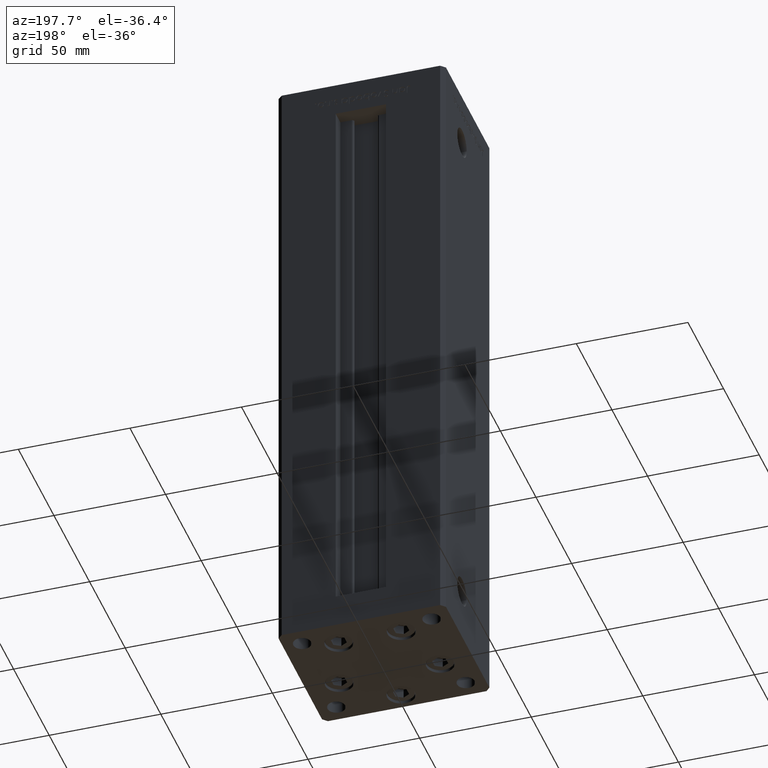
[diagram: clean part render]
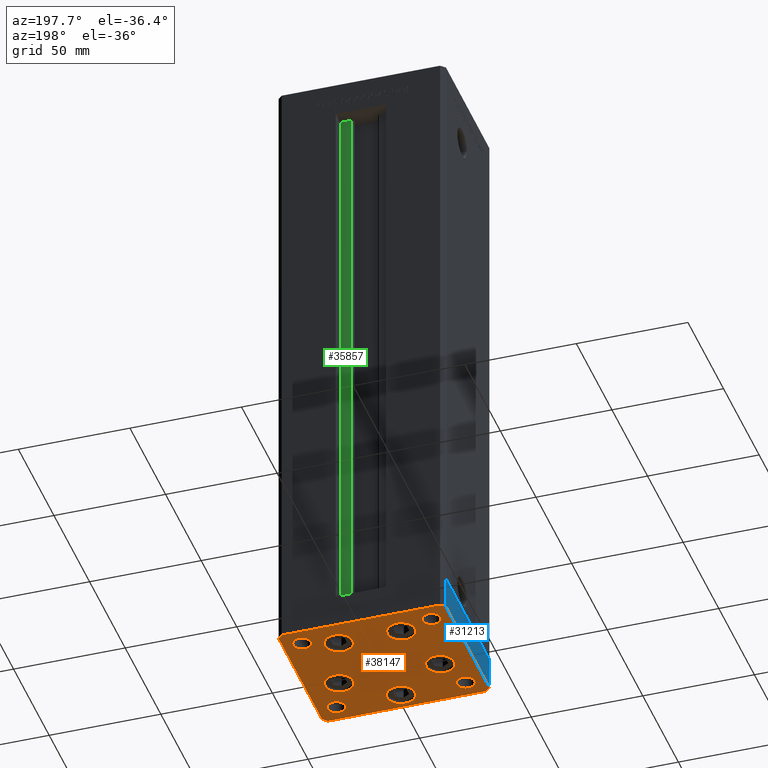
[diagram: same view with three faces highlighted in distinct colors, each labeled with its STEP entity id]
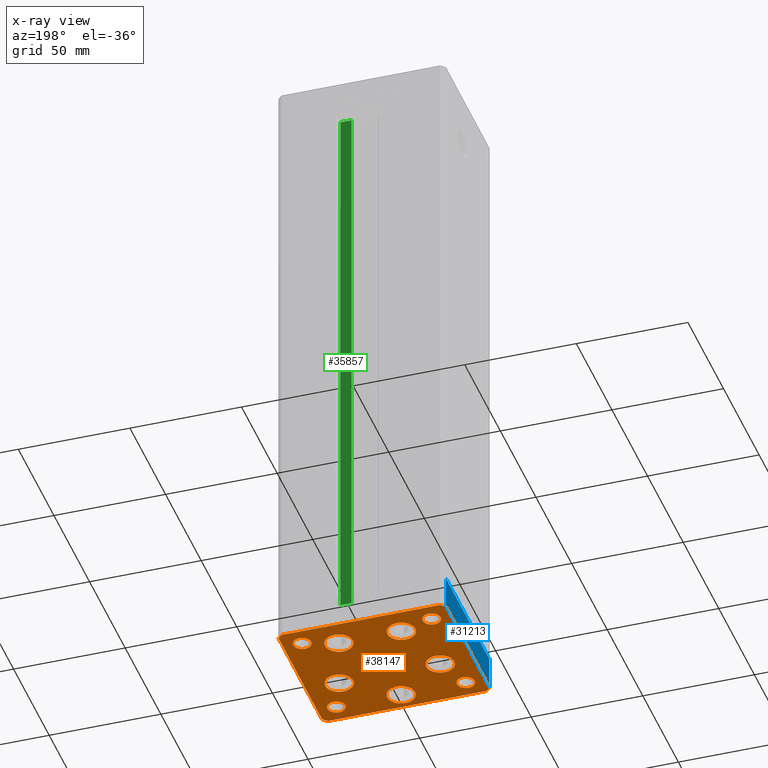
[diagram: x-ray of the same camera — body ghosted, the three highlighted faces saturated]
A machine part, auxiliary view with three faces highlighted in distinct colors.
The next image is the same camera in x-ray (body ghosted, the three faces saturated) — at least one of them is partly hidden behind the body in this view.
Their STEP definitions:

[orange] entity #38147 — the highlighted planar face has unit normal (0, 0, -1).
#11 = VERTEX_POINT ( 'NONE', #47615 ) ;
#150 = ORIENTED_EDGE ( 'NONE', *, *, #50216, .T. ) ;
#223 = VERTEX_POINT ( 'NONE', #45893 ) ;
#557 = CIRCLE ( 'NONE', #46852, 3.999999999999996447 ) ;
#698 = CARTESIAN_POINT ( 'NONE',  ( 2.939152317953647500E-15, -24.00000000000000000, 0.000000000000000000 ) ) ;
#778 = DIRECTION ( 'NONE',  ( 1.000000000000000000, 9.773090005503140331E-17, 0.000000000000000000 ) ) ;
#1134 = VERTEX_POINT ( 'NONE', #43478 ) ;
#1224 = CARTESIAN_POINT ( 'NONE',  ( -16.37741699796951877, -8.000000000000005329, 0.000000000000000000 ) ) ;
#1435 = LINE ( 'NONE', #29133, #8142 ) ;
#1682 = VERTEX_POINT ( 'NONE', #46803 ) ;
#2109 = DIRECTION ( 'NONE',  ( 0.000000000000000000, -0.000000000000000000, -1.000000000000000000 ) ) ;
#2135 = DIRECTION ( 'NONE',  ( 4.550094363217855288E-16, -1.000000000000000000, 0.000000000000000000 ) ) ;
#2228 = EDGE_LOOP ( 'NONE', ( #35288, #13881 ) ) ;
#2489 = CARTESIAN_POINT ( 'NONE',  ( 35.49999999999992184, 32.50000000000000711, 0.000000000000000000 ) ) ;
#2541 = CIRCLE ( 'NONE', #8474, 4.000000000000000000 ) ;
#3454 = CARTESIAN_POINT ( 'NONE',  ( 37.50000000000001421, -30.50000000000000711, 0.000000000000000000 ) ) ;
#3622 = DIRECTION ( 'NONE',  ( 1.000000000000000000, 0.000000000000000000, 0.000000000000000000 ) ) ;
#3780 = EDGE_CURVE ( 'NONE', #33777, #1134, #19866, .T. ) ;
#4207 = EDGE_CURVE ( 'NONE', #44463, #50930, #1435, .T. ) ;
#4429 = CARTESIAN_POINT ( 'NONE',  ( -35.49999999999998579, -32.50000000000001421, 0.000000000000000000 ) ) ;
#4550 = CARTESIAN_POINT ( 'NONE',  ( -13.99106857963322703, 19.49999999999999645, 0.000000000000000000 ) ) ;
#4680 = CARTESIAN_POINT ( 'NONE',  ( -13.99106857963322703, 19.49999999999999645, 0.000000000000000000 ) ) ;
#4746 = VERTEX_POINT ( 'NONE', #44852 ) ;
#4924 = EDGE_CURVE ( 'NONE', #51261, #44463, #50866, .T. ) ;
#5198 = DIRECTION ( 'NONE',  ( 1.000000000000000000, 0.000000000000000000, 0.000000000000000000 ) ) ;
#5346 = VERTEX_POINT ( 'NONE', #45450 ) ;
#5664 = VECTOR ( 'NONE', #778, 1000.000000000000000 ) ;
#5919 = CIRCLE ( 'NONE', #43766, 4.000000000000003553 ) ;
#6177 = DIRECTION ( 'NONE',  ( 1.000000000000000000, 0.000000000000000000, 0.000000000000000000 ) ) ;
#7267 = CARTESIAN_POINT ( 'NONE',  ( 29.00000000000001066, 24.00000000000000711, 0.000000000000000000 ) ) ;
#7286 = CIRCLE ( 'NONE', #30855, 3.999999999999996447 ) ;
#7337 = EDGE_LOOP ( 'NONE', ( #32609, #21108 ) ) ;
#7346 = DIRECTION ( 'NONE',  ( 0.000000000000000000, -0.000000000000000000, -1.000000000000000000 ) ) ;
#7400 = CARTESIAN_POINT ( 'NONE',  ( 20.24106857963322526, 19.50000000000000000, 0.000000000000000000 ) ) ;
#7588 = FACE_BOUND ( 'NONE', #31401, .T. ) ;
#7593 = VECTOR ( 'NONE', #40848, 1000.000000000000114 ) ;
#8142 = VECTOR ( 'NONE', #21484, 1000.000000000000000 ) ;
#8173 = CARTESIAN_POINT ( 'NONE',  ( -37.49999999999998579, -30.50000000000001421, 0.000000000000000000 ) ) ;
#8474 = AXIS2_PLACEMENT_3D ( 'NONE', #45173, #16692, #32778 ) ;
#8603 = CARTESIAN_POINT ( 'NONE',  ( 22.62741699796951877, -8.000000000000000000, 0.000000000000000000 ) ) ;
#8707 = DIRECTION ( 'NONE',  ( 0.000000000000000000, -0.000000000000000000, -1.000000000000000000 ) ) ;
#9146 = CIRCLE ( 'NONE', #25106, 4.000000000000003553 ) ;
#9250 = AXIS2_PLACEMENT_3D ( 'NONE', #23872, #31793, #27570 ) ;
#9820 = EDGE_CURVE ( 'NONE', #47099, #51261, #44302, .T. ) ;
#10003 = AXIS2_PLACEMENT_3D ( 'NONE', #50114, #2109, #21642 ) ;
#10031 = CIRCLE ( 'NONE', #15879, 6.250000000000000000 ) ;
#10751 = ORIENTED_EDGE ( 'NONE', *, *, #9820, .T. ) ;
#10782 = DIRECTION ( 'NONE',  ( -0.000000000000000000, 0.000000000000000000, 1.000000000000000000 ) ) ;
#10825 = LINE ( 'NONE', #18713, #51398 ) ;
#11301 = DIRECTION ( 'NONE',  ( 1.000000000000000000, 0.000000000000000000, 0.000000000000000000 ) ) ;
#11369 = LINE ( 'NONE', #43804, #43251 ) ;
#11543 = AXIS2_PLACEMENT_3D ( 'NONE', #23078, #23589, #39154 ) ;
#11813 = FACE_BOUND ( 'NONE', #30138, .T. ) ;
#12006 = CARTESIAN_POINT ( 'NONE',  ( -29.00000000000001066, 24.00000000000000711, 0.000000000000000000 ) ) ;
#12350 = VERTEX_POINT ( 'NONE', #14023 ) ;
#12446 = CARTESIAN_POINT ( 'NONE',  ( -28.87741699796952233, -8.000000000000005329, 0.000000000000000000 ) ) ;
#13027 = CARTESIAN_POINT ( 'NONE',  ( -35.50000000000002842, 32.49999999999999289, 0.000000000000000000 ) ) ;
#13106 = DIRECTION ( 'NONE',  ( 0.000000000000000000, -0.000000000000000000, -1.000000000000000000 ) ) ;
#13515 = VERTEX_POINT ( 'NONE', #17496 ) ;
#13736 = VERTEX_POINT ( 'NONE', #12446 ) ;
#13763 = EDGE_CURVE ( 'NONE', #13736, #34534, #48727, .T. ) ;
#13871 = DIRECTION ( 'NONE',  ( 1.000000000000000000, 0.000000000000000000, 0.000000000000000000 ) ) ;
#13881 = ORIENTED_EDGE ( 'NONE', *, *, #24139, .T. ) ;
#13953 = DIRECTION ( 'NONE',  ( 1.000000000000000000, 0.000000000000000000, 0.000000000000000000 ) ) ;
#14023 = CARTESIAN_POINT ( 'NONE',  ( 28.87741699796952233, -8.000000000000000000, 0.000000000000000000 ) ) ;
#14037 = EDGE_CURVE ( 'NONE', #47889, #28158, #9146, .T. ) ;
#14129 = AXIS2_PLACEMENT_3D ( 'NONE', #8603, #28877, #24654 ) ;
#14270 = CIRCLE ( 'NONE', #9250, 6.250000000000001776 ) ;
#14285 = LINE ( 'NONE', #49369, #50296 ) ;
#14462 = CIRCLE ( 'NONE', #47256, 6.250000000000000000 ) ;
#14642 = ORIENTED_EDGE ( 'NONE', *, *, #19658, .T. ) ;
#15034 = EDGE_CURVE ( 'NONE', #38926, #29009, #10031, .T. ) ;
#15393 = CARTESIAN_POINT ( 'NONE',  ( 7.741068579633223479, 19.50000000000000000, 0.000000000000000000 ) ) ;
#15488 = FACE_BOUND ( 'NONE', #7337, .T. ) ;
#15753 = CARTESIAN_POINT ( 'NONE',  ( 0.000000000000000000, 0.000000000000000000, 0.000000000000000000 ) ) ;
#15760 = VERTEX_POINT ( 'NONE', #8173 ) ;
#15879 = AXIS2_PLACEMENT_3D ( 'NONE', #44557, #8707, #48246 ) ;
#16066 = LINE ( 'NONE', #32158, #7593 ) ;
#16100 = VERTEX_POINT ( 'NONE', #36800 ) ;
#16282 = DIRECTION ( 'NONE',  ( 1.000000000000000000, 0.000000000000000000, 0.000000000000000000 ) ) ;
#16692 = DIRECTION ( 'NONE',  ( 0.000000000000000000, -0.000000000000000000, -1.000000000000000000 ) ) ;
#16713 = ORIENTED_EDGE ( 'NONE', *, *, #40074, .T. ) ;
#17322 = AXIS2_PLACEMENT_3D ( 'NONE', #30205, #37346, #13871 ) ;
#17347 = VERTEX_POINT ( 'NONE', #13027 ) ;
#17496 = CARTESIAN_POINT ( 'NONE',  ( -33.00000000000000711, 24.00000000000000711, 0.000000000000000000 ) ) ;
#17887 = CARTESIAN_POINT ( 'NONE',  ( 6.250000000000002665, -24.00000000000000000, 0.000000000000000000 ) ) ;
#18064 = ORIENTED_EDGE ( 'NONE', *, *, #19051, .T. ) ;
#18430 = ORIENTED_EDGE ( 'NONE', *, *, #13763, .T. ) ;
#18713 = CARTESIAN_POINT ( 'NONE',  ( -35.50000000000002842, 32.49999999999999289, 0.000000000000000000 ) ) ;
#18803 = CARTESIAN_POINT ( 'NONE',  ( 2.939152317953647500E-15, -24.00000000000000000, 0.000000000000000000 ) ) ;
#19051 = EDGE_CURVE ( 'NONE', #15760, #47099, #16066, .T. ) ;
#19053 = ORIENTED_EDGE ( 'NONE', *, *, #14037, .F. ) ;
#19124 = EDGE_CURVE ( 'NONE', #1134, #33777, #5919, .T. ) ;
#19273 = ORIENTED_EDGE ( 'NONE', *, *, #26045, .T. ) ;
#19658 = EDGE_CURVE ( 'NONE', #17347, #16100, #10825, .T. ) ;
#19866 = CIRCLE ( 'NONE', #26605, 4.000000000000003553 ) ;
#19968 = FACE_BOUND ( 'NONE', #32464, .T. ) ;
#20363 = AXIS2_PLACEMENT_3D ( 'NONE', #698, #13106, #5198 ) ;
#20372 = DIRECTION ( 'NONE',  ( 0.000000000000000000, -0.000000000000000000, -1.000000000000000000 ) ) ;
#20983 = VERTEX_POINT ( 'NONE', #39085 ) ;
#21108 = ORIENTED_EDGE ( 'NONE', *, *, #30627, .F. ) ;
#21122 = CARTESIAN_POINT ( 'NONE',  ( -33.00000000000000711, -23.99999999999999289, 0.000000000000000000 ) ) ;
#21484 = DIRECTION ( 'NONE',  ( -1.478780668045802821E-15, 1.000000000000000000, 0.000000000000000000 ) ) ;
#21642 = DIRECTION ( 'NONE',  ( 1.000000000000000000, 0.000000000000000000, 0.000000000000000000 ) ) ;
#21756 = AXIS2_PLACEMENT_3D ( 'NONE', #35286, #7346, #11301 ) ;
#21855 = CARTESIAN_POINT ( 'NONE',  ( 29.00000000000001066, -23.99999999999999289, 0.000000000000000000 ) ) ;
#21983 = AXIS2_PLACEMENT_3D ( 'NONE', #7267, #42630, #38680 ) ;
#23078 = CARTESIAN_POINT ( 'NONE',  ( -22.62741699796951877, -8.000000000000005329, 0.000000000000000000 ) ) ;
#23234 = EDGE_LOOP ( 'NONE', ( #34861, #35357 ) ) ;
#23281 = ORIENTED_EDGE ( 'NONE', *, *, #43836, .T. ) ;
#23589 = DIRECTION ( 'NONE',  ( 0.000000000000000000, -0.000000000000000000, -1.000000000000000000 ) ) ;
#23607 = CIRCLE ( 'NONE', #40452, 6.250000000000000000 ) ;
#23872 = CARTESIAN_POINT ( 'NONE',  ( 22.62741699796951877, -8.000000000000000000, 0.000000000000000000 ) ) ;
#24026 = VERTEX_POINT ( 'NONE', #17887 ) ;
#24139 = EDGE_CURVE ( 'NONE', #24026, #4746, #51514, .T. ) ;
#24654 = DIRECTION ( 'NONE',  ( 1.000000000000000000, 0.000000000000000000, 0.000000000000000000 ) ) ;
#25046 = CARTESIAN_POINT ( 'NONE',  ( 25.00000000000000711, 24.00000000000000711, 0.000000000000000000 ) ) ;
#25106 = AXIS2_PLACEMENT_3D ( 'NONE', #31537, #47620, #27588 ) ;
#25743 = CIRCLE ( 'NONE', #17322, 6.250000000000000000 ) ;
#26045 = EDGE_CURVE ( 'NONE', #50930, #32322, #11369, .T. ) ;
#26207 = DIRECTION ( 'NONE',  ( 0.000000000000000000, -0.000000000000000000, -1.000000000000000000 ) ) ;
#26467 = CARTESIAN_POINT ( 'NONE',  ( 35.50000000000000711, -32.50000000000000711, 0.000000000000000000 ) ) ;
#26605 = AXIS2_PLACEMENT_3D ( 'NONE', #50915, #36067, #16282 ) ;
#26876 = EDGE_CURVE ( 'NONE', #29009, #38926, #25743, .T. ) ;
#27570 = DIRECTION ( 'NONE',  ( 1.000000000000000000, 0.000000000000000000, 0.000000000000000000 ) ) ;
#27588 = DIRECTION ( 'NONE',  ( 1.000000000000000000, 0.000000000000000000, 0.000000000000000000 ) ) ;
#27607 = VECTOR ( 'NONE', #50751, 1000.000000000000000 ) ;
#27681 = CARTESIAN_POINT ( 'NONE',  ( -35.49999999999998579, -32.50000000000001421, 0.000000000000000000 ) ) ;
#27887 = FACE_BOUND ( 'NONE', #30314, .T. ) ;
#28158 = VERTEX_POINT ( 'NONE', #25046 ) ;
#28449 = CIRCLE ( 'NONE', #14129, 6.250000000000001776 ) ;
#28550 = ORIENTED_EDGE ( 'NONE', *, *, #46535, .T. ) ;
#28877 = DIRECTION ( 'NONE',  ( 0.000000000000000000, -0.000000000000000000, -1.000000000000000000 ) ) ;
#29009 = VERTEX_POINT ( 'NONE', #15393 ) ;
#29133 = CARTESIAN_POINT ( 'NONE',  ( 37.50000000000001421, -30.50000000000000711, 0.000000000000000000 ) ) ;
#29296 = EDGE_LOOP ( 'NONE', ( #18064, #10751, #33769, #30080, #19273, #44808, #14642, #46220 ) ) ;
#30045 = DIRECTION ( 'NONE',  ( 0.7071067811865487940, 0.7071067811865463515, 0.000000000000000000 ) ) ;
#30080 = ORIENTED_EDGE ( 'NONE', *, *, #4207, .T. ) ;
#30138 = EDGE_LOOP ( 'NONE', ( #18430, #35894 ) ) ;
#30205 = CARTESIAN_POINT ( 'NONE',  ( 13.99106857963322348, 19.50000000000000000, 0.000000000000000000 ) ) ;
#30314 = EDGE_LOOP ( 'NONE', ( #34279, #45204 ) ) ;
#30627 = EDGE_CURVE ( 'NONE', #13515, #20983, #557, .T. ) ;
#30741 = EDGE_CURVE ( 'NONE', #20983, #13515, #7286, .T. ) ;
#30794 = DIRECTION ( 'NONE',  ( 1.000000000000000000, 0.000000000000000000, 0.000000000000000000 ) ) ;
#30855 = AXIS2_PLACEMENT_3D ( 'NONE', #12006, #10782, #30794 ) ;
#31079 = ORIENTED_EDGE ( 'NONE', *, *, #38559, .T. ) ;
#31267 = EDGE_CURVE ( 'NONE', #16100, #15760, #14285, .T. ) ;
#31401 = EDGE_LOOP ( 'NONE', ( #150, #16713 ) ) ;
#31537 = CARTESIAN_POINT ( 'NONE',  ( 29.00000000000001066, 24.00000000000000711, 0.000000000000000000 ) ) ;
#31702 = DIRECTION ( 'NONE',  ( 1.000000000000000000, 0.000000000000000000, 0.000000000000000000 ) ) ;
#31793 = DIRECTION ( 'NONE',  ( 0.000000000000000000, -0.000000000000000000, -1.000000000000000000 ) ) ;
#32158 = CARTESIAN_POINT ( 'NONE',  ( -37.49999999999998579, -30.50000000000001421, 0.000000000000000000 ) ) ;
#32322 = VERTEX_POINT ( 'NONE', #51419 ) ;
#32464 = EDGE_LOOP ( 'NONE', ( #19053, #51309 ) ) ;
#32586 = EDGE_LOOP ( 'NONE', ( #31079, #23281 ) ) ;
#32609 = ORIENTED_EDGE ( 'NONE', *, *, #30741, .F. ) ;
#32610 = CARTESIAN_POINT ( 'NONE',  ( 33.00000000000001421, -23.99999999999999289, 0.000000000000000000 ) ) ;
#32672 = AXIS2_PLACEMENT_3D ( 'NONE', #15753, #52149, #3622 ) ;
#32735 = EDGE_LOOP ( 'NONE', ( #45040, #28550 ) ) ;
#32778 = DIRECTION ( 'NONE',  ( 1.000000000000000000, 0.000000000000000000, 0.000000000000000000 ) ) ;
#32953 = CARTESIAN_POINT ( 'NONE',  ( -29.00000000000001066, 24.00000000000000711, 0.000000000000000000 ) ) ;
#33769 = ORIENTED_EDGE ( 'NONE', *, *, #4924, .T. ) ;
#33777 = VERTEX_POINT ( 'NONE', #32610 ) ;
#33948 = CARTESIAN_POINT ( 'NONE',  ( 33.00000000000001421, 24.00000000000000711, 0.000000000000000000 ) ) ;
#34279 = ORIENTED_EDGE ( 'NONE', *, *, #3780, .T. ) ;
#34534 = VERTEX_POINT ( 'NONE', #1224 ) ;
#34657 = LINE ( 'NONE', #2489, #27607 ) ;
#34861 = ORIENTED_EDGE ( 'NONE', *, *, #26876, .T. ) ;
#35011 = FACE_BOUND ( 'NONE', #32586, .T. ) ;
#35286 = CARTESIAN_POINT ( 'NONE',  ( -29.00000000000001066, -23.99999999999999289, 0.000000000000000000 ) ) ;
#35288 = ORIENTED_EDGE ( 'NONE', *, *, #49115, .T. ) ;
#35357 = ORIENTED_EDGE ( 'NONE', *, *, #15034, .T. ) ;
#35361 = DIRECTION ( 'NONE',  ( -0.7071067811865482389, 0.7071067811865469066, 0.000000000000000000 ) ) ;
#35894 = ORIENTED_EDGE ( 'NONE', *, *, #37617, .T. ) ;
#35971 = CIRCLE ( 'NONE', #11543, 6.250000000000001776 ) ;
#36066 = PLANE ( 'NONE',  #32672 ) ;
#36067 = DIRECTION ( 'NONE',  ( 0.000000000000000000, -0.000000000000000000, -1.000000000000000000 ) ) ;
#36800 = CARTESIAN_POINT ( 'NONE',  ( -37.50000000000001421, 30.49999999999998579, 0.000000000000000000 ) ) ;
#37346 = DIRECTION ( 'NONE',  ( 0.000000000000000000, -0.000000000000000000, -1.000000000000000000 ) ) ;
#37617 = EDGE_CURVE ( 'NONE', #34534, #13736, #35971, .T. ) ;
#38147 = ADVANCED_FACE ( 'NONE', ( #43193, #39743, #35011, #51612, #11813, #19968, #27887, #15488, #38978, #7588 ), #36066, .T. ) ;
#38559 = EDGE_CURVE ( 'NONE', #1682, #12350, #28449, .T. ) ;
#38680 = DIRECTION ( 'NONE',  ( 1.000000000000000000, 0.000000000000000000, 0.000000000000000000 ) ) ;
#38926 = VERTEX_POINT ( 'NONE', #7400 ) ;
#38978 = FACE_OUTER_BOUND ( 'NONE', #29296, .T. ) ;
#39085 = CARTESIAN_POINT ( 'NONE',  ( -25.00000000000001421, 24.00000000000000711, 0.000000000000000000 ) ) ;
#39154 = DIRECTION ( 'NONE',  ( 1.000000000000000000, 0.000000000000000000, 0.000000000000000000 ) ) ;
#39606 = CIRCLE ( 'NONE', #41298, 6.250000000000000000 ) ;
#39743 = FACE_BOUND ( 'NONE', #23234, .T. ) ;
#40074 = EDGE_CURVE ( 'NONE', #42118, #223, #41967, .T. ) ;
#40452 = AXIS2_PLACEMENT_3D ( 'NONE', #4680, #41597, #40550 ) ;
#40550 = DIRECTION ( 'NONE',  ( 1.000000000000000000, 0.000000000000000000, 0.000000000000000000 ) ) ;
#40637 = EDGE_CURVE ( 'NONE', #32322, #17347, #34657, .T. ) ;
#40848 = DIRECTION ( 'NONE',  ( 0.7071067811865474617, -0.7071067811865474617, 0.000000000000000000 ) ) ;
#41298 = AXIS2_PLACEMENT_3D ( 'NONE', #4550, #20372, #31702 ) ;
#41597 = DIRECTION ( 'NONE',  ( 0.000000000000000000, -0.000000000000000000, -1.000000000000000000 ) ) ;
#41967 = CIRCLE ( 'NONE', #21756, 4.000000000000000000 ) ;
#42118 = VERTEX_POINT ( 'NONE', #21122 ) ;
#42630 = DIRECTION ( 'NONE',  ( -0.000000000000000000, 0.000000000000000000, 1.000000000000000000 ) ) ;
#42902 = CARTESIAN_POINT ( 'NONE',  ( 37.49999999999992184, 30.50000000000001066, 0.000000000000000000 ) ) ;
#42978 = DIRECTION ( 'NONE',  ( -0.7071067811865426878, -0.7071067811865524577, 0.000000000000000000 ) ) ;
#43193 = FACE_BOUND ( 'NONE', #32735, .T. ) ;
#43251 = VECTOR ( 'NONE', #35361, 999.9999999999998863 ) ;
#43478 = CARTESIAN_POINT ( 'NONE',  ( 25.00000000000000711, -23.99999999999999289, 0.000000000000000000 ) ) ;
#43766 = AXIS2_PLACEMENT_3D ( 'NONE', #21855, #49290, #45843 ) ;
#43804 = CARTESIAN_POINT ( 'NONE',  ( 37.49999999999992184, 30.50000000000001066, 0.000000000000000000 ) ) ;
#43836 = EDGE_CURVE ( 'NONE', #12350, #1682, #14270, .T. ) ;
#44302 = LINE ( 'NONE', #27681, #5664 ) ;
#44463 = VERTEX_POINT ( 'NONE', #3454 ) ;
#44557 = CARTESIAN_POINT ( 'NONE',  ( 13.99106857963322348, 19.50000000000000000, 0.000000000000000000 ) ) ;
#44724 = CIRCLE ( 'NONE', #21983, 4.000000000000003553 ) ;
#44808 = ORIENTED_EDGE ( 'NONE', *, *, #40637, .T. ) ;
#44852 = CARTESIAN_POINT ( 'NONE',  ( -6.249999999999997335, -24.00000000000000000, 0.000000000000000000 ) ) ;
#45040 = ORIENTED_EDGE ( 'NONE', *, *, #47068, .T. ) ;
#45173 = CARTESIAN_POINT ( 'NONE',  ( -29.00000000000001066, -23.99999999999999289, 0.000000000000000000 ) ) ;
#45198 = VECTOR ( 'NONE', #30045, 1000.000000000000000 ) ;
#45204 = ORIENTED_EDGE ( 'NONE', *, *, #19124, .T. ) ;
#45450 = CARTESIAN_POINT ( 'NONE',  ( -20.24106857963322881, 19.49999999999999645, 0.000000000000000000 ) ) ;
#45610 = DIRECTION ( 'NONE',  ( -0.000000000000000000, 0.000000000000000000, 1.000000000000000000 ) ) ;
#45624 = CARTESIAN_POINT ( 'NONE',  ( 35.50000000000000711, -32.50000000000000711, 0.000000000000000000 ) ) ;
#45843 = DIRECTION ( 'NONE',  ( 1.000000000000000000, 0.000000000000000000, 0.000000000000000000 ) ) ;
#45893 = CARTESIAN_POINT ( 'NONE',  ( -25.00000000000001066, -23.99999999999999289, 0.000000000000000000 ) ) ;
#46220 = ORIENTED_EDGE ( 'NONE', *, *, #31267, .T. ) ;
#46535 = EDGE_CURVE ( 'NONE', #11, #5346, #39606, .T. ) ;
#46803 = CARTESIAN_POINT ( 'NONE',  ( 16.37741699796951877, -8.000000000000000000, 0.000000000000000000 ) ) ;
#46852 = AXIS2_PLACEMENT_3D ( 'NONE', #32953, #45610, #13953 ) ;
#47068 = EDGE_CURVE ( 'NONE', #5346, #11, #23607, .T. ) ;
#47099 = VERTEX_POINT ( 'NONE', #4429 ) ;
#47256 = AXIS2_PLACEMENT_3D ( 'NONE', #18803, #26207, #6177 ) ;
#47615 = CARTESIAN_POINT ( 'NONE',  ( -7.741068579633227031, 19.49999999999999645, 0.000000000000000000 ) ) ;
#47620 = DIRECTION ( 'NONE',  ( -0.000000000000000000, 0.000000000000000000, 1.000000000000000000 ) ) ;
#47889 = VERTEX_POINT ( 'NONE', #33948 ) ;
#48246 = DIRECTION ( 'NONE',  ( 1.000000000000000000, 0.000000000000000000, 0.000000000000000000 ) ) ;
#48727 = CIRCLE ( 'NONE', #10003, 6.250000000000001776 ) ;
#49115 = EDGE_CURVE ( 'NONE', #4746, #24026, #14462, .T. ) ;
#49290 = DIRECTION ( 'NONE',  ( 0.000000000000000000, -0.000000000000000000, -1.000000000000000000 ) ) ;
#49369 = CARTESIAN_POINT ( 'NONE',  ( -37.50000000000001421, 30.49999999999998579, 0.000000000000000000 ) ) ;
#50114 = CARTESIAN_POINT ( 'NONE',  ( -22.62741699796951877, -8.000000000000005329, 0.000000000000000000 ) ) ;
#50216 = EDGE_CURVE ( 'NONE', #223, #42118, #2541, .T. ) ;
#50296 = VECTOR ( 'NONE', #2135, 1000.000000000000000 ) ;
#50751 = DIRECTION ( 'NONE',  ( -1.000000000000000000, -1.954618001100629052E-16, 0.000000000000000000 ) ) ;
#50866 = LINE ( 'NONE', #45624, #45198 ) ;
#50915 = CARTESIAN_POINT ( 'NONE',  ( 29.00000000000001066, -23.99999999999999289, 0.000000000000000000 ) ) ;
#50930 = VERTEX_POINT ( 'NONE', #42902 ) ;
#51261 = VERTEX_POINT ( 'NONE', #26467 ) ;
#51309 = ORIENTED_EDGE ( 'NONE', *, *, #52176, .F. ) ;
#51398 = VECTOR ( 'NONE', #42978, 1000.000000000000000 ) ;
#51419 = CARTESIAN_POINT ( 'NONE',  ( 35.49999999999992184, 32.50000000000000711, 0.000000000000000000 ) ) ;
#51514 = CIRCLE ( 'NONE', #20363, 6.250000000000000000 ) ;
#51612 = FACE_BOUND ( 'NONE', #2228, .T. ) ;
#52149 = DIRECTION ( 'NONE',  ( -0.000000000000000000, 0.000000000000000000, 1.000000000000000000 ) ) ;
#52176 = EDGE_CURVE ( 'NONE', #28158, #47889, #44724, .T. ) ;

[blue] entity #31213 — the highlighted planar face has unit normal (-1, 0, 0).
#1435 = LINE ( 'NONE', #29133, #8142 ) ;
#2170 = ORIENTED_EDGE ( 'NONE', *, *, #36638, .F. ) ;
#3454 = CARTESIAN_POINT ( 'NONE',  ( 37.50000000000001421, -30.50000000000000711, 0.000000000000000000 ) ) ;
#4207 = EDGE_CURVE ( 'NONE', #44463, #50930, #1435, .T. ) ;
#4777 = CARTESIAN_POINT ( 'NONE',  ( 37.49999999999992184, 30.50000000000001066, -15.00000000000000000 ) ) ;
#5075 = CARTESIAN_POINT ( 'NONE',  ( 37.50000000000001421, -30.50000000000000711, -15.00000000000000000 ) ) ;
#5339 = FACE_OUTER_BOUND ( 'NONE', #47294, .T. ) ;
#7321 = VECTOR ( 'NONE', #20294, 1000.000000000000000 ) ;
#7816 = VERTEX_POINT ( 'NONE', #5075 ) ;
#8142 = VECTOR ( 'NONE', #21484, 1000.000000000000000 ) ;
#9247 = EDGE_CURVE ( 'NONE', #7816, #29559, #21220, .T. ) ;
#9879 = AXIS2_PLACEMENT_3D ( 'NONE', #38019, #37247, #21407 ) ;
#13053 = CARTESIAN_POINT ( 'NONE',  ( 37.50000000000001421, -30.50000000000000711, -15.00000000000000000 ) ) ;
#14981 = VECTOR ( 'NONE', #17001, 1000.000000000000000 ) ;
#16598 = CARTESIAN_POINT ( 'NONE',  ( 37.50000000000001421, -30.50000000000000711, -15.00000000000000000 ) ) ;
#17001 = DIRECTION ( 'NONE',  ( -1.478780668045802821E-15, 1.000000000000000000, 0.000000000000000000 ) ) ;
#17714 = EDGE_CURVE ( 'NONE', #29559, #50930, #28242, .T. ) ;
#20294 = DIRECTION ( 'NONE',  ( 0.000000000000000000, 0.000000000000000000, 1.000000000000000000 ) ) ;
#21220 = LINE ( 'NONE', #13053, #14981 ) ;
#21407 = DIRECTION ( 'NONE',  ( -1.478780668045803018E-15, 1.000000000000000000, 0.000000000000000000 ) ) ;
#21484 = DIRECTION ( 'NONE',  ( -1.478780668045802821E-15, 1.000000000000000000, 0.000000000000000000 ) ) ;
#28242 = LINE ( 'NONE', #4777, #37881 ) ;
#29133 = CARTESIAN_POINT ( 'NONE',  ( 37.50000000000001421, -30.50000000000000711, 0.000000000000000000 ) ) ;
#29202 = ORIENTED_EDGE ( 'NONE', *, *, #9247, .T. ) ;
#29425 = CARTESIAN_POINT ( 'NONE',  ( 37.49999999999992184, 30.50000000000001066, -15.00000000000000000 ) ) ;
#29559 = VERTEX_POINT ( 'NONE', #29425 ) ;
#31213 = ADVANCED_FACE ( 'NONE', ( #5339 ), #50401, .T. ) ;
#36638 = EDGE_CURVE ( 'NONE', #7816, #44463, #44295, .T. ) ;
#36827 = ORIENTED_EDGE ( 'NONE', *, *, #17714, .T. ) ;
#37247 = DIRECTION ( 'NONE',  ( 1.000000000000000000, 1.478780668045803018E-15, -0.000000000000000000 ) ) ;
#37881 = VECTOR ( 'NONE', #48033, 1000.000000000000000 ) ;
#38019 = CARTESIAN_POINT ( 'NONE',  ( 37.50000000000001421, -30.50000000000000711, -15.00000000000000000 ) ) ;
#42372 = ORIENTED_EDGE ( 'NONE', *, *, #4207, .F. ) ;
#42902 = CARTESIAN_POINT ( 'NONE',  ( 37.49999999999992184, 30.50000000000001066, 0.000000000000000000 ) ) ;
#44295 = LINE ( 'NONE', #16598, #7321 ) ;
#44463 = VERTEX_POINT ( 'NONE', #3454 ) ;
#47294 = EDGE_LOOP ( 'NONE', ( #42372, #2170, #29202, #36827 ) ) ;
#48033 = DIRECTION ( 'NONE',  ( 0.000000000000000000, 0.000000000000000000, 1.000000000000000000 ) ) ;
#50401 = PLANE ( 'NONE',  #9879 ) ;
#50930 = VERTEX_POINT ( 'NONE', #42902 ) ;

[green] entity #35857 — the highlighted planar face has unit normal (0, -1, 0).
#675 = VECTOR ( 'NONE', #895, 1000.000000000000000 ) ;
#895 = DIRECTION ( 'NONE',  ( -0.000000000000000000, -0.000000000000000000, 1.000000000000000000 ) ) ;
#1405 = CARTESIAN_POINT ( 'NONE',  ( 6.183333333334001480, 25.99999999999999289, 0.000000000000000000 ) ) ;
#6507 = CARTESIAN_POINT ( 'NONE',  ( 11.25000000000000178, 25.99999999999999289, 0.000000000000000000 ) ) ;
#7485 = DIRECTION ( 'NONE',  ( 1.000000000000000000, 0.000000000000000000, 0.000000000000000000 ) ) ;
#10357 = ORIENTED_EDGE ( 'NONE', *, *, #47218, .F. ) ;
#10543 = ORIENTED_EDGE ( 'NONE', *, *, #14451, .T. ) ;
#14451 = EDGE_CURVE ( 'NONE', #43204, #18437, #37541, .T. ) ;
#14533 = CARTESIAN_POINT ( 'NONE',  ( 6.183333333334001480, 25.99999999999999289, 0.000000000000000000 ) ) ;
#15751 = VECTOR ( 'NONE', #38084, 1000.000000000000000 ) ;
#16167 = DIRECTION ( 'NONE',  ( -0.000000000000000000, -0.000000000000000000, 1.000000000000000000 ) ) ;
#16785 = CARTESIAN_POINT ( 'NONE',  ( 6.183333333334001480, 25.99999999999999289, 256.0000000000000000 ) ) ;
#17967 = ORIENTED_EDGE ( 'NONE', *, *, #41479, .F. ) ;
#18437 = VERTEX_POINT ( 'NONE', #16785 ) ;
#18747 = CARTESIAN_POINT ( 'NONE',  ( 11.25000000000000178, 25.99999999999999289, 256.0000000000000000 ) ) ;
#19236 = VECTOR ( 'NONE', #7485, 1000.000000000000000 ) ;
#21752 = CARTESIAN_POINT ( 'NONE',  ( 6.183333333334001480, 25.99999999999999289, 0.000000000000000000 ) ) ;
#21943 = VECTOR ( 'NONE', #16167, 1000.000000000000000 ) ;
#22941 = FACE_OUTER_BOUND ( 'NONE', #51625, .T. ) ;
#23293 = LINE ( 'NONE', #30700, #19236 ) ;
#24056 = LINE ( 'NONE', #40143, #21943 ) ;
#26630 = DIRECTION ( 'NONE',  ( 0.000000000000000000, -1.000000000000000000, 0.000000000000000000 ) ) ;
#30700 = CARTESIAN_POINT ( 'NONE',  ( 6.183333333334001480, 25.99999999999999289, 0.000000000000000000 ) ) ;
#30863 = LINE ( 'NONE', #33870, #15751 ) ;
#33870 = CARTESIAN_POINT ( 'NONE',  ( 0.000000000000000000, 25.99999999999999289, 256.0000000000000000 ) ) ;
#34813 = DIRECTION ( 'NONE',  ( 0.000000000000000000, -0.000000000000000000, -1.000000000000000000 ) ) ;
#35857 = ADVANCED_FACE ( 'NONE', ( #22941 ), #50658, .F. ) ;
#37541 = LINE ( 'NONE', #1405, #675 ) ;
#37850 = EDGE_CURVE ( 'NONE', #49343, #18437, #30863, .T. ) ;
#38084 = DIRECTION ( 'NONE',  ( -1.000000000000000000, 0.000000000000000000, 0.000000000000000000 ) ) ;
#40143 = CARTESIAN_POINT ( 'NONE',  ( 11.25000000000000178, 25.99999999999999289, 0.000000000000000000 ) ) ;
#40809 = ORIENTED_EDGE ( 'NONE', *, *, #37850, .F. ) ;
#41479 = EDGE_CURVE ( 'NONE', #43204, #52177, #23293, .T. ) ;
#43204 = VERTEX_POINT ( 'NONE', #21752 ) ;
#47218 = EDGE_CURVE ( 'NONE', #52177, #49343, #24056, .T. ) ;
#48558 = AXIS2_PLACEMENT_3D ( 'NONE', #14533, #26630, #34813 ) ;
#49343 = VERTEX_POINT ( 'NONE', #18747 ) ;
#50658 = PLANE ( 'NONE',  #48558 ) ;
#51625 = EDGE_LOOP ( 'NONE', ( #10357, #17967, #10543, #40809 ) ) ;
#52177 = VERTEX_POINT ( 'NONE', #6507 ) ;